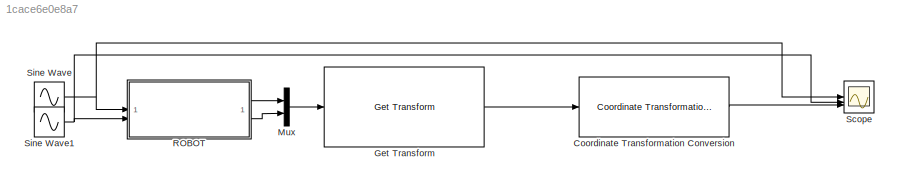
MODEL slx_1cace6e0e8a7
KIND model
CONFIG AbsTol = auto
CONFIG EnableMultiTasking = off
CONFIG FixedStep = auto
CONFIG MaxStep = auto
CONFIG MinStep = auto
CONFIG RelTol = 1e-3
CONFIG SampleTimeConstraint = Unconstrained
CONFIG SolverName = VariableStepAuto
CONFIG StartTime = 0.0
CONFIG StopTime = 10.0
BLOCK [Reference] Coordinate Transformation Conversion  REF=robotcorelib/Coordinate Transformation Conversion
  LibrarySourceBlock = robotutilslib/Coordinate Transformation Conversion
  SourceBlock = robotcorelib/Coordinate Transformation Conversion
  SourceType = robotics.slcore.internal.block.CoordinateTransformationConversion
BLOCK [Reference] Get Transform  REF=robotmaniplib/Get Transform
  SourceBlock = robotmaniplib/Get Transform
  SourceType = Get Transform
BLOCK [Mux] Mux
  DisplayOption = bar
  Inputs = 2
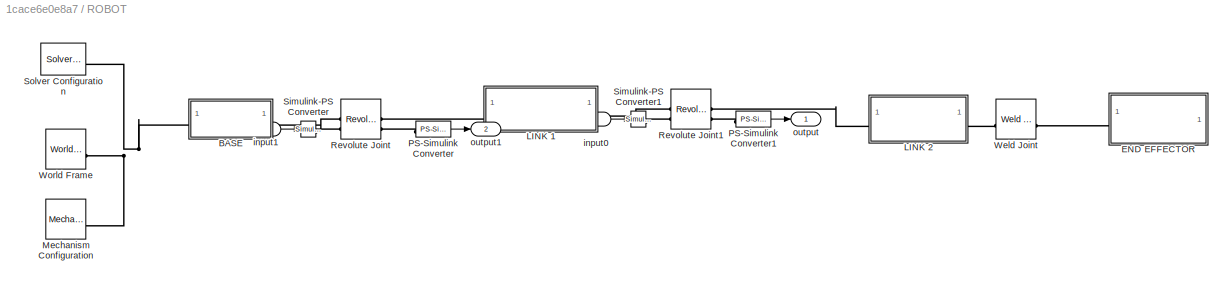
BLOCK [SubSystem] ROBOT
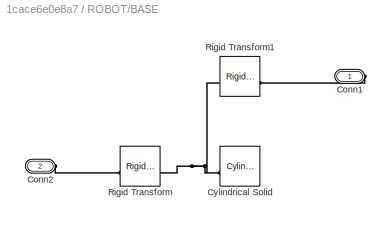
BLOCK [SubSystem] ROBOT/BASE
BLOCK [PMIOPort] ROBOT/BASE/Conn1
  Side = Right
BLOCK [PMIOPort] ROBOT/BASE/Conn2
  Port = 2
  Side = Left
BLOCK [Reference] ROBOT/BASE/Cylindrical Solid  REF=sm_lib/Body Elements/Cylindrical Solid
  SourceBlock = sm_lib/Body Elements/Cylindrical Solid
  SourceType = Cylindrical Solid
BLOCK [Reference] ROBOT/BASE/Rigid Transform  REF=sm_lib/Frames and
Transforms/Rigid
Transform
  SourceBlock = sm_lib/Frames and\nTransforms/Rigid\nTransform
  SourceType = Rigid\nTransform
BLOCK [Reference] ROBOT/BASE/Rigid Transform1  REF=sm_lib/Frames and
Transforms/Rigid
Transform
  SourceBlock = sm_lib/Frames and\nTransforms/Rigid\nTransform
  SourceType = Rigid\nTransform
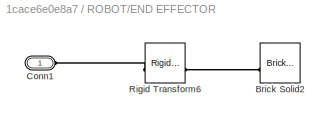
BLOCK [SubSystem] ROBOT/END EFFECTOR
BLOCK [Reference] ROBOT/END EFFECTOR/Brick Solid2  REF=sm_lib/Body Elements/Brick Solid
  SourceBlock = sm_lib/Body Elements/Brick Solid
  SourceType = Brick Solid
BLOCK [PMIOPort] ROBOT/END EFFECTOR/Conn1
  Side = Left
BLOCK [Reference] ROBOT/END EFFECTOR/Rigid Transform6  REF=sm_lib/Frames and
Transforms/Rigid
Transform
  SourceBlock = sm_lib/Frames and\nTransforms/Rigid\nTransform
  SourceType = Rigid\nTransform
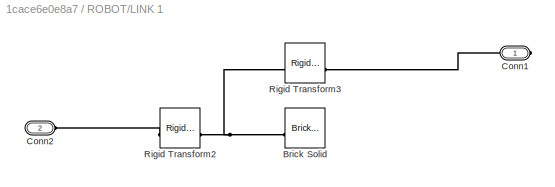
BLOCK [SubSystem] ROBOT/LINK 1
BLOCK [Reference] ROBOT/LINK 1/Brick Solid  REF=sm_lib/Body Elements/Brick Solid
  SourceBlock = sm_lib/Body Elements/Brick Solid
  SourceType = Brick Solid
BLOCK [PMIOPort] ROBOT/LINK 1/Conn1
  Side = Right
BLOCK [PMIOPort] ROBOT/LINK 1/Conn2
  Port = 2
  Side = Left
BLOCK [Reference] ROBOT/LINK 1/Rigid Transform2  REF=sm_lib/Frames and
Transforms/Rigid
Transform
  SourceBlock = sm_lib/Frames and\nTransforms/Rigid\nTransform
  SourceType = Rigid\nTransform
BLOCK [Reference] ROBOT/LINK 1/Rigid Transform3  REF=sm_lib/Frames and
Transforms/Rigid
Transform
  SourceBlock = sm_lib/Frames and\nTransforms/Rigid\nTransform
  SourceType = Rigid\nTransform
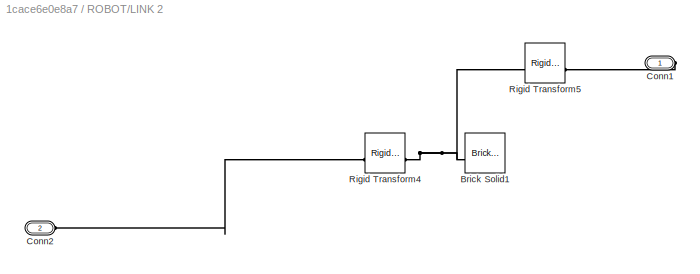
BLOCK [SubSystem] ROBOT/LINK 2
BLOCK [Reference] ROBOT/LINK 2/Brick Solid1  REF=sm_lib/Body Elements/Brick Solid
  SourceBlock = sm_lib/Body Elements/Brick Solid
  SourceType = Brick Solid
BLOCK [PMIOPort] ROBOT/LINK 2/Conn1
  Side = Right
BLOCK [PMIOPort] ROBOT/LINK 2/Conn2
  Port = 2
  Side = Left
BLOCK [Reference] ROBOT/LINK 2/Rigid Transform4  REF=sm_lib/Frames and
Transforms/Rigid
Transform
  SourceBlock = sm_lib/Frames and\nTransforms/Rigid\nTransform
  SourceType = Rigid\nTransform
BLOCK [Reference] ROBOT/LINK 2/Rigid Transform5  REF=sm_lib/Frames and
Transforms/Rigid
Transform
  SourceBlock = sm_lib/Frames and\nTransforms/Rigid\nTransform
  SourceType = Rigid\nTransform
BLOCK [Reference] ROBOT/Mechanism Configuration  REF=sm_lib/Utilities/Mechanism
Configuration
  SourceBlock = sm_lib/Utilities/Mechanism\nConfiguration
  SourceType = Mechanism\nConfiguration
BLOCK [Reference] ROBOT/PS-Simulink Converter  REF=nesl_utility/PS-Simulink
Converter
  SourceBlock = nesl_utility/PS-Simulink\nConverter
  SourceType = PS-Simulink\nConverter
BLOCK [Reference] ROBOT/PS-Simulink Converter1  REF=nesl_utility/PS-Simulink
Converter
  SourceBlock = nesl_utility/PS-Simulink\nConverter
  SourceType = PS-Simulink\nConverter
BLOCK [Reference] ROBOT/Revolute Joint  REF=sm_lib/Joints/Revolute Joint
  SourceBlock = sm_lib/Joints/Revolute Joint
  SourceType = Revolute Joint
BLOCK [Reference] ROBOT/Revolute Joint1  REF=sm_lib/Joints/Revolute Joint
  SourceBlock = sm_lib/Joints/Revolute Joint
  SourceType = Revolute Joint
BLOCK [Reference] ROBOT/Simulink-PS Converter  REF=nesl_utility/Simulink-PS
Converter
  SourceBlock = nesl_utility/Simulink-PS\nConverter
  SourceType = Simulink-PS\nConverter
BLOCK [Reference] ROBOT/Simulink-PS Converter1  REF=nesl_utility/Simulink-PS
Converter
  SourceBlock = nesl_utility/Simulink-PS\nConverter
  SourceType = Simulink-PS\nConverter
BLOCK [Reference] ROBOT/Solver Configuration  REF=nesl_utility/Solver
Configuration
  SourceBlock = nesl_utility/Solver\nConfiguration
  SourceType = Solver\nConfiguration
BLOCK [Reference] ROBOT/Weld Joint  REF=sm_lib/Joints/Weld Joint
  SourceBlock = sm_lib/Joints/Weld Joint
  SourceType = Weld Joint
BLOCK [Reference] ROBOT/World Frame  REF=sm_lib/Frames and
Transforms/World Frame
  SourceBlock = sm_lib/Frames and\nTransforms/World Frame
  SourceType = World Frame
BLOCK [Inport] ROBOT/input0
BLOCK [Inport] ROBOT/input1
  Port = 2
BLOCK [Outport] ROBOT/output
BLOCK [Outport] ROBOT/output1
  Port = 2
BLOCK [Scope] Scope
  Floating = off
  NumInputPorts = 3
  ScopeSpecificationString = Simulink.scopes.TimeScopeBlockCfg('CurrentConfiguration', extmgr.ConfigurationSet(extmgr.Configuration('Core','General UI',true),extmgr.Configuration('Core','Source UI',true),extmgr.Configuration('Sources','WiredSimulink',true),extmgr.Configuration('Visuals','Time Domain',true,'SerializedDisplays',{struct('MinYLimReal','-10','MaxYLimReal','10','YLabelReal','','MinYLimMag','0','MaxYLimMag','10','Le...<+810ch>
BLOCK [Sin] Sine Wave
  Amplitude = 1.5
  Frequency = 2
  SampleTime = 0
BLOCK [Sin] Sine Wave1
  Amplitude = 1.5
  SampleTime = 0
LINE Coordinate Transformation Conversion:1 -> Scope:3
LINE Get Transform:1 -> Coordinate Transformation Conversion:1
LINE Mux:1 -> Get Transform:1
LINE ROBOT/PS-Simulink Converter1:1 -> ROBOT/output:1
LINE ROBOT/PS-Simulink Converter:1 -> ROBOT/output1:1
LINE ROBOT/input0:1 -> ROBOT/Simulink-PS Converter1:1
LINE ROBOT/input1:1 -> ROBOT/Simulink-PS Converter:1
LINE ROBOT:1 -> Mux:1
LINE ROBOT:2 -> Mux:2
NET Sine Wave1:1 -> ROBOT:2, Scope:2
NET Sine Wave:1 -> ROBOT:1, Scope:1
PLINE ROBOT/BASE/Conn1:RConn1 -- ROBOT/BASE/Rigid Transform1:RConn1
PLINE ROBOT/BASE/Conn2:RConn1 -- ROBOT/BASE/Rigid Transform:LConn1
PNET net1: ROBOT/BASE/Cylindrical Solid:RConn1 -- ROBOT/BASE/Rigid Transform1:LConn1 -- ROBOT/BASE/Rigid Transform:RConn1
PNET net2: ROBOT/BASE:LConn1 -- ROBOT/Mechanism Configuration:RConn1 -- ROBOT/Solver Configuration:RConn1 -- ROBOT/World Frame:RConn1
PLINE ROBOT/BASE:RConn1 -- ROBOT/Revolute Joint:LConn1
PLINE ROBOT/END EFFECTOR/Brick Solid2:RConn1 -- ROBOT/END EFFECTOR/Rigid Transform6:RConn1
PLINE ROBOT/END EFFECTOR/Conn1:RConn1 -- ROBOT/END EFFECTOR/Rigid Transform6:LConn1
PLINE ROBOT/END EFFECTOR:LConn1 -- ROBOT/Weld Joint:RConn1
PNET net3: ROBOT/LINK 1/Brick Solid:RConn1 -- ROBOT/LINK 1/Rigid Transform2:RConn1 -- ROBOT/LINK 1/Rigid Transform3:LConn1
PLINE ROBOT/LINK 1/Conn1:RConn1 -- ROBOT/LINK 1/Rigid Transform3:RConn1
PLINE ROBOT/LINK 1/Conn2:RConn1 -- ROBOT/LINK 1/Rigid Transform2:LConn1
PLINE ROBOT/LINK 1:LConn1 -- ROBOT/Revolute Joint:RConn1
PLINE ROBOT/LINK 1:RConn1 -- ROBOT/Revolute Joint1:LConn1
PNET net4: ROBOT/LINK 2/Brick Solid1:RConn1 -- ROBOT/LINK 2/Rigid Transform4:RConn1 -- ROBOT/LINK 2/Rigid Transform5:LConn1
PLINE ROBOT/LINK 2/Conn1:RConn1 -- ROBOT/LINK 2/Rigid Transform5:RConn1
PLINE ROBOT/LINK 2/Conn2:RConn1 -- ROBOT/LINK 2/Rigid Transform4:LConn1
PLINE ROBOT/LINK 2:LConn1 -- ROBOT/Revolute Joint1:RConn1
PLINE ROBOT/LINK 2:RConn1 -- ROBOT/Weld Joint:LConn1
PLINE ROBOT/PS-Simulink Converter1:LConn1 -- ROBOT/Revolute Joint1:RConn2
PLINE ROBOT/PS-Simulink Converter:LConn1 -- ROBOT/Revolute Joint:RConn2
PLINE ROBOT/Revolute Joint1:LConn2 -- ROBOT/Simulink-PS Converter1:RConn1
PLINE ROBOT/Revolute Joint:LConn2 -- ROBOT/Simulink-PS Converter:RConn1
note: NET lines group one-source signal fan-out (src -> all destinations, sorted); 1:1 wires keep LINE; PNET lines group multi-terminal physical nets as a canonical sorted terminal list (undirected conserving connections); 2-terminal nets keep the pairwise PLINE form
